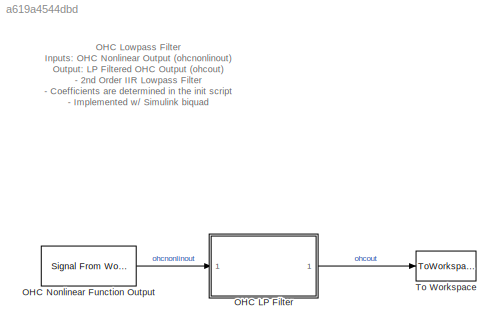
MODEL slx_a619a4544dbd
KIND model
CONFIG AbsTol = auto
CONFIG EnableMultiTasking = off
CONFIG FixedStep = auto
CONFIG InitFcn = OHC_Lowpass_Test_Parameters
CONFIG MaxStep = auto
CONFIG MinStep = auto
CONFIG RelTol = 1e-3
CONFIG SampleTimeConstraint = Unconstrained
CONFIG Solver = VariableStepAuto
CONFIG SolverName = VariableStepAuto
CONFIG StartTime = 0.0
CONFIG StopFcn = Verify_OHC_Lowpass_Filter
CONFIG StopTime = testtime
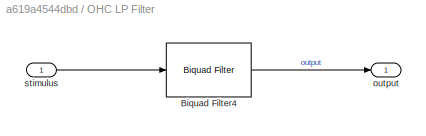
BLOCK [SubSystem] OHC LP Filter
  Ports = [1, 1]
  RequestExecContextInheritance = off
  ShowPortLabels = none
BLOCK [Reference] OHC LP Filter/Biquad Filter4  REF=dsparch4/Biquad Filter
  Ports = [1, 1]
  SourceBlock = dsparch4/Biquad Filter
  SourceProductBaseCode = DS
  SourceProductName = DSP System Toolbox
  SourceType = Biquad Filter
  UserDataPersistent = on
BLOCK [Outport] OHC LP Filter/output
  IconDisplay = Port number
BLOCK [Inport] OHC LP Filter/stimulus
  IconDisplay = Port number
BLOCK [Reference] OHC Nonlinear Function Output  REF=dspsrcs4/Signal From
Workspace
  Ports = [0, 1]
  SourceBlock = dspsrcs4/Signal From\nWorkspace
  SourceProductBaseCode = DS
  SourceProductName = DSP System Toolbox
  SourceType = Signal From Workspace
BLOCK [ToWorkspace] To Workspace
  MaxDataPoints = inf
  Ports = [1]
  SampleTime = -1
  Save2DSignal = 2-D array (concatenate along first dimension)
  VariableName = ohcout
ANNOTATION (root): OHC Lowpass Filter Inputs : OHC Nonlinear Output (ohcnonlinout) Output : LP Filtered OHC Output (ohcout) - 2nd Order IIR Lowpass Filter - Coefficients are determined in the init script - Implemented w/ Simulink biquad
LINE OHC LP Filter/Biquad Filter4:1 -> OHC LP Filter/output:1
LINE OHC LP Filter/stimulus:1 -> OHC LP Filter/Biquad Filter4:1
LINE OHC LP Filter:1 -> To Workspace:1
LINE OHC Nonlinear Function Output:1 -> OHC LP Filter:1
